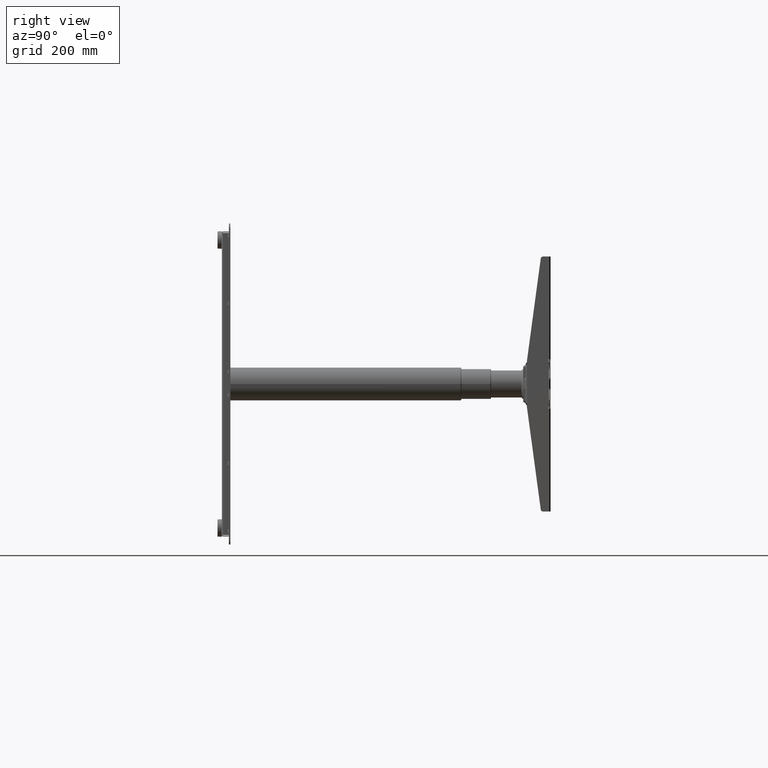
[diagram: clean part render]
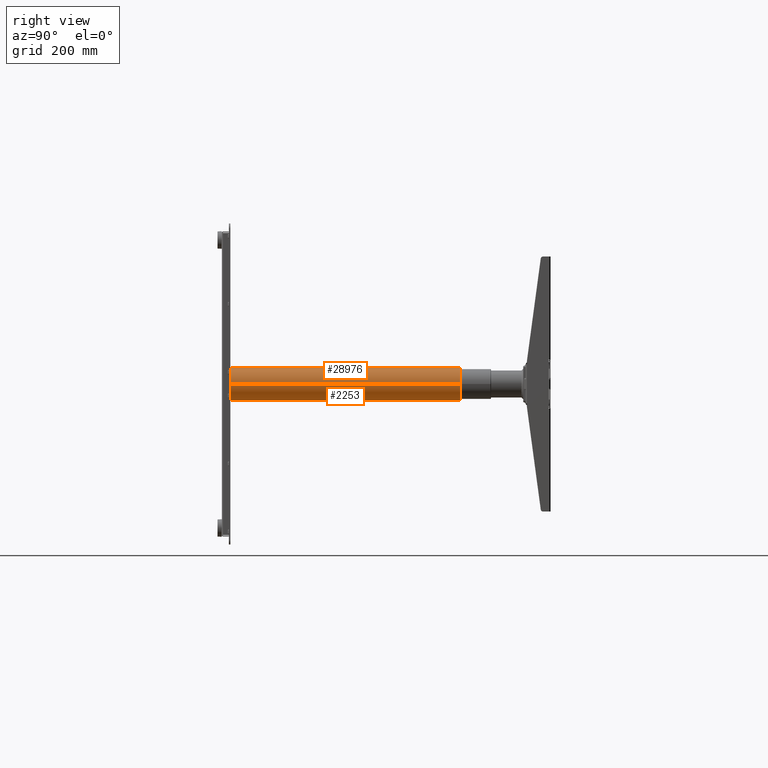
[diagram: same view with one multi-face feature highlighted, each face labeled with its STEP entity id]
A machine part, right view. The highlighted faces form ONE feature: a constant-radius fillet chain: 2 tangent blend faces with common blend radius 35 mm. The faces share edges in the B-rep.
Their STEP definitions:
[1] entity #28976 (Cylinder):
#1096 = DIRECTION ( 'NONE',  ( 1.000000000000000000, 0.000000000000000000, 0.000000000000000000 ) ) ;
#3719 = CARTESIAN_POINT ( 'NONE',  ( 594.5000000000001137, 514.1000000000019554, -4.286263797015734919E-15 ) ) ;
#12801 = DIRECTION ( 'NONE',  ( -0.000000000000000000, -1.000000000000000000, 0.000000000000000000 ) ) ;
#16016 = ORIENTED_EDGE ( 'NONE', *, *, #64756, .F. ) ;
#20808 = CARTESIAN_POINT ( 'NONE',  ( 559.5000000000001137, 27.10000000000199805, -1.540743955509788682E-30 ) ) ;
#21653 = DIRECTION ( 'NONE',  ( -1.000000000000000000, 0.000000000000000000, 0.000000000000000000 ) ) ;
#23609 = VERTEX_POINT ( 'NONE', #108289 ) ;
#25534 = VERTEX_POINT ( 'NONE', #3719 ) ;
#26558 = ORIENTED_EDGE ( 'NONE', *, *, #47171, .T. ) ;
#26697 = DIRECTION ( 'NONE',  ( -0.000000000000000000, -1.000000000000000000, 0.000000000000000000 ) ) ;
#28976 = ADVANCED_FACE ( 'NONE', ( #54870 ), #88690, .T. ) ;
#32646 = DIRECTION ( 'NONE',  ( 0.000000000000000000, 1.000000000000000000, 0.000000000000000000 ) ) ;
#35610 = CARTESIAN_POINT ( 'NONE',  ( 524.5000000000001137, 514.1000000000019554, -1.540743955509788682E-30 ) ) ;
#37123 = DIRECTION ( 'NONE',  ( -0.000000000000000000, -1.000000000000000000, 0.000000000000000000 ) ) ;
#37530 = ORIENTED_EDGE ( 'NONE', *, *, #92699, .F. ) ;
#39954 = VECTOR ( 'NONE', #26697, 1000.000000000000000 ) ;
#42060 = CARTESIAN_POINT ( 'NONE',  ( 559.5000000000001137, 514.1000000000019554, -1.540743955509788682E-30 ) ) ;
#45465 = LINE ( 'NONE', #46556, #79239 ) ;
#46556 = CARTESIAN_POINT ( 'NONE',  ( 594.5000000000001137, 514.1000000000019554, -4.286263797015738074E-15 ) ) ;
#47130 = CARTESIAN_POINT ( 'NONE',  ( 559.5000000000001137, 514.1000000000019554, -1.540743955509788682E-30 ) ) ;
#47171 = EDGE_CURVE ( 'NONE', #53681, #100929, #102626, .T. ) ;
#50937 = CARTESIAN_POINT ( 'NONE',  ( 524.5000000000001137, 27.10000000000199805, -1.540743955509788682E-30 ) ) ;
#51347 = EDGE_LOOP ( 'NONE', ( #37530, #16016, #26558, #59592 ) ) ;
#53681 = VERTEX_POINT ( 'NONE', #35610 ) ;
#54870 = FACE_OUTER_BOUND ( 'NONE', #51347, .T. ) ;
#55673 = DIRECTION ( 'NONE',  ( 0.000000000000000000, 1.000000000000000000, 0.000000000000000000 ) ) ;
#57677 = CIRCLE ( 'NONE', #87717, 35.00000000000002842 ) ;
#59592 = ORIENTED_EDGE ( 'NONE', *, *, #61964, .T. ) ;
#61964 = EDGE_CURVE ( 'NONE', #100929, #23609, #95011, .T. ) ;
#63129 = AXIS2_PLACEMENT_3D ( 'NONE', #20808, #55673, #106662 ) ;
#64756 = EDGE_CURVE ( 'NONE', #53681, #25534, #57677, .T. ) ;
#79239 = VECTOR ( 'NONE', #37123, 1000.000000000000000 ) ;
#87717 = AXIS2_PLACEMENT_3D ( 'NONE', #42060, #32646, #1096 ) ;
#88690 = CYLINDRICAL_SURFACE ( 'NONE', #91125, 35.00000000000002842 ) ;
#91125 = AXIS2_PLACEMENT_3D ( 'NONE', #47130, #12801, #21653 ) ;
#92699 = EDGE_CURVE ( 'NONE', #25534, #23609, #45465, .T. ) ;
#95011 = CIRCLE ( 'NONE', #63129, 35.00000000000002842 ) ;
#100929 = VERTEX_POINT ( 'NONE', #50937 ) ;
#102626 = LINE ( 'NONE', #109304, #39954 ) ;
#106662 = DIRECTION ( 'NONE',  ( 1.000000000000000000, 0.000000000000000000, 0.000000000000000000 ) ) ;
#108289 = CARTESIAN_POINT ( 'NONE',  ( 594.5000000000001137, 27.10000000000199805, -4.286263797015734919E-15 ) ) ;
#109304 = CARTESIAN_POINT ( 'NONE',  ( 524.5000000000001137, 514.1000000000019554, -1.540743955509788682E-30 ) ) ;
[2] entity #2253 (Cylinder):
#1714 = CARTESIAN_POINT ( 'NONE',  ( 559.5000000000001137, 27.10000000000199805, -1.540743955509788682E-30 ) ) ;
#2253 = ADVANCED_FACE ( 'NONE', ( #107593 ), #32025, .T. ) ;
#3719 = CARTESIAN_POINT ( 'NONE',  ( 594.5000000000001137, 514.1000000000019554, -4.286263797015734919E-15 ) ) ;
#5056 = CIRCLE ( 'NONE', #52804, 35.00000000000002842 ) ;
#5485 = DIRECTION ( 'NONE',  ( -1.000000000000000000, 0.000000000000000000, 0.000000000000000000 ) ) ;
#6026 = ORIENTED_EDGE ( 'NONE', *, *, #24414, .F. ) ;
#7671 = CARTESIAN_POINT ( 'NONE',  ( 559.5000000000001137, 514.1000000000019554, -1.540743955509788682E-30 ) ) ;
#13835 = DIRECTION ( 'NONE',  ( -0.000000000000000000, -1.000000000000000000, 0.000000000000000000 ) ) ;
#20175 = EDGE_CURVE ( 'NONE', #23609, #100929, #5056, .T. ) ;
#23609 = VERTEX_POINT ( 'NONE', #108289 ) ;
#24414 = EDGE_CURVE ( 'NONE', #25534, #53681, #86724, .T. ) ;
#25534 = VERTEX_POINT ( 'NONE', #3719 ) ;
#26697 = DIRECTION ( 'NONE',  ( -0.000000000000000000, -1.000000000000000000, 0.000000000000000000 ) ) ;
#28604 = AXIS2_PLACEMENT_3D ( 'NONE', #7671, #13835, #5485 ) ;
#32025 = CYLINDRICAL_SURFACE ( 'NONE', #28604, 35.00000000000002842 ) ;
#35610 = CARTESIAN_POINT ( 'NONE',  ( 524.5000000000001137, 514.1000000000019554, -1.540743955509788682E-30 ) ) ;
#37123 = DIRECTION ( 'NONE',  ( -0.000000000000000000, -1.000000000000000000, 0.000000000000000000 ) ) ;
#39954 = VECTOR ( 'NONE', #26697, 1000.000000000000000 ) ;
#42876 = DIRECTION ( 'NONE',  ( 0.000000000000000000, 1.000000000000000000, 0.000000000000000000 ) ) ;
#45465 = LINE ( 'NONE', #46556, #79239 ) ;
#46556 = CARTESIAN_POINT ( 'NONE',  ( 594.5000000000001137, 514.1000000000019554, -4.286263797015738074E-15 ) ) ;
#47171 = EDGE_CURVE ( 'NONE', #53681, #100929, #102626, .T. ) ;
#50937 = CARTESIAN_POINT ( 'NONE',  ( 524.5000000000001137, 27.10000000000199805, -1.540743955509788682E-30 ) ) ;
#52804 = AXIS2_PLACEMENT_3D ( 'NONE', #1714, #60935, #105212 ) ;
#53681 = VERTEX_POINT ( 'NONE', #35610 ) ;
#58982 = CARTESIAN_POINT ( 'NONE',  ( 559.5000000000001137, 514.1000000000019554, -1.540743955509788682E-30 ) ) ;
#60935 = DIRECTION ( 'NONE',  ( 0.000000000000000000, 1.000000000000000000, 0.000000000000000000 ) ) ;
#70816 = AXIS2_PLACEMENT_3D ( 'NONE', #58982, #42876, #77272 ) ;
#77272 = DIRECTION ( 'NONE',  ( 1.000000000000000000, 0.000000000000000000, 0.000000000000000000 ) ) ;
#79239 = VECTOR ( 'NONE', #37123, 1000.000000000000000 ) ;
#81037 = EDGE_LOOP ( 'NONE', ( #6026, #87208, #94418, #84269 ) ) ;
#84269 = ORIENTED_EDGE ( 'NONE', *, *, #47171, .F. ) ;
#86724 = CIRCLE ( 'NONE', #70816, 35.00000000000002842 ) ;
#87208 = ORIENTED_EDGE ( 'NONE', *, *, #92699, .T. ) ;
#92699 = EDGE_CURVE ( 'NONE', #25534, #23609, #45465, .T. ) ;
#94418 = ORIENTED_EDGE ( 'NONE', *, *, #20175, .T. ) ;
#100929 = VERTEX_POINT ( 'NONE', #50937 ) ;
#102626 = LINE ( 'NONE', #109304, #39954 ) ;
#105212 = DIRECTION ( 'NONE',  ( 1.000000000000000000, 0.000000000000000000, 0.000000000000000000 ) ) ;
#107593 = FACE_OUTER_BOUND ( 'NONE', #81037, .T. ) ;
#108289 = CARTESIAN_POINT ( 'NONE',  ( 594.5000000000001137, 27.10000000000199805, -4.286263797015734919E-15 ) ) ;
#109304 = CARTESIAN_POINT ( 'NONE',  ( 524.5000000000001137, 514.1000000000019554, -1.540743955509788682E-30 ) ) ;